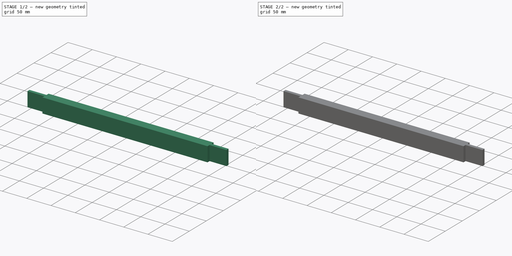
[diagram: build sequence overview — one tinted view per stage of 2, left to right]
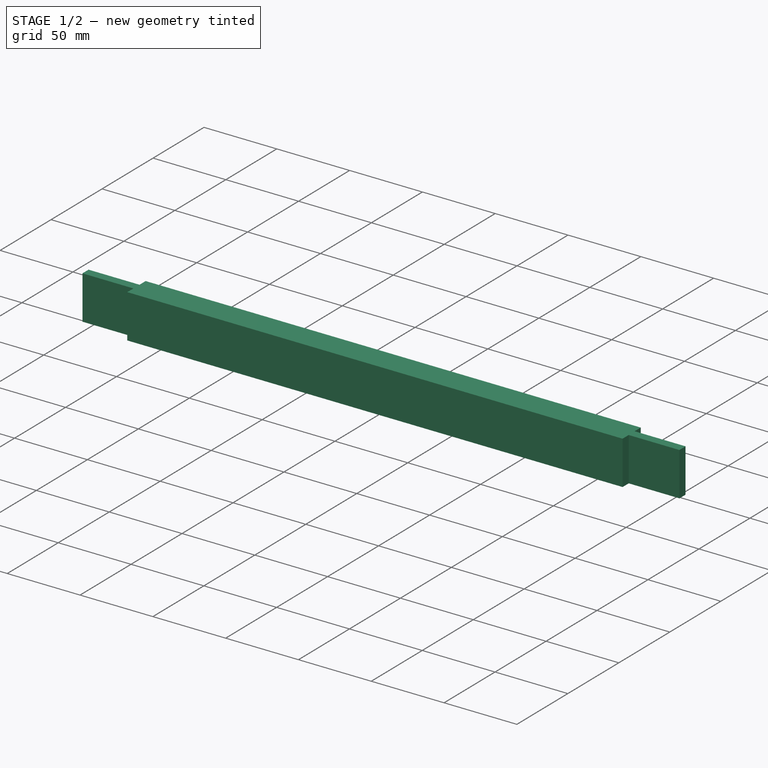
[diagram: stage 1 of 2 — iso view after this stage's code; geometry added in this stage tinted green]
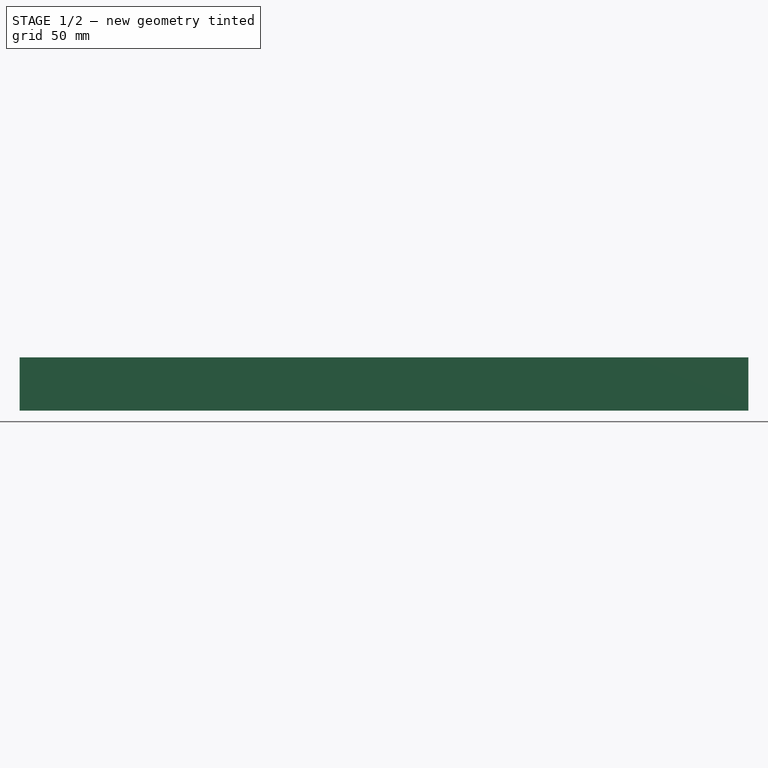
[diagram: stage 1 of 2 — front view after this stage's code; geometry added in this stage tinted green]
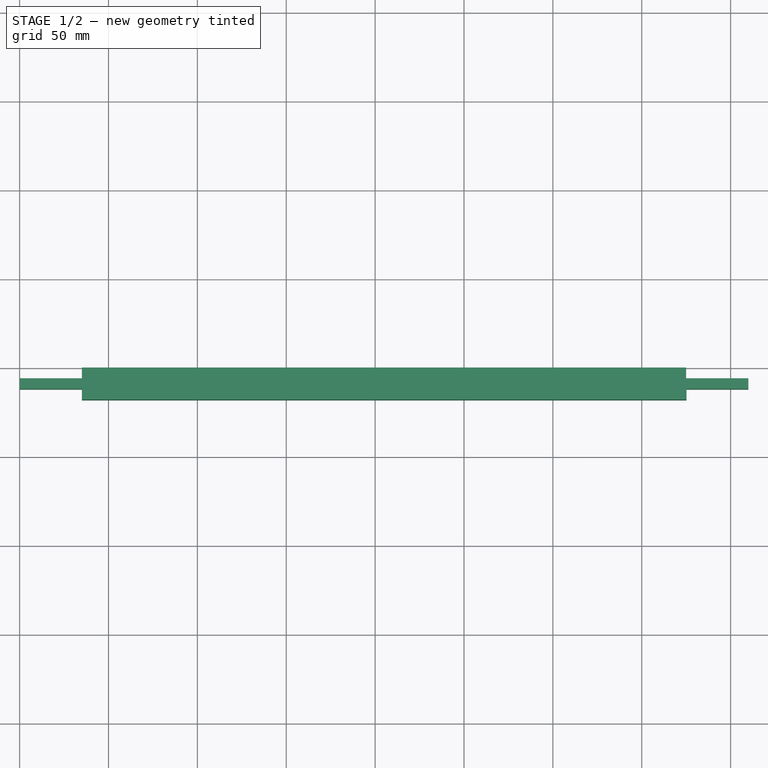
[diagram: stage 1 of 2 — top view after this stage's code; geometry added in this stage tinted green]
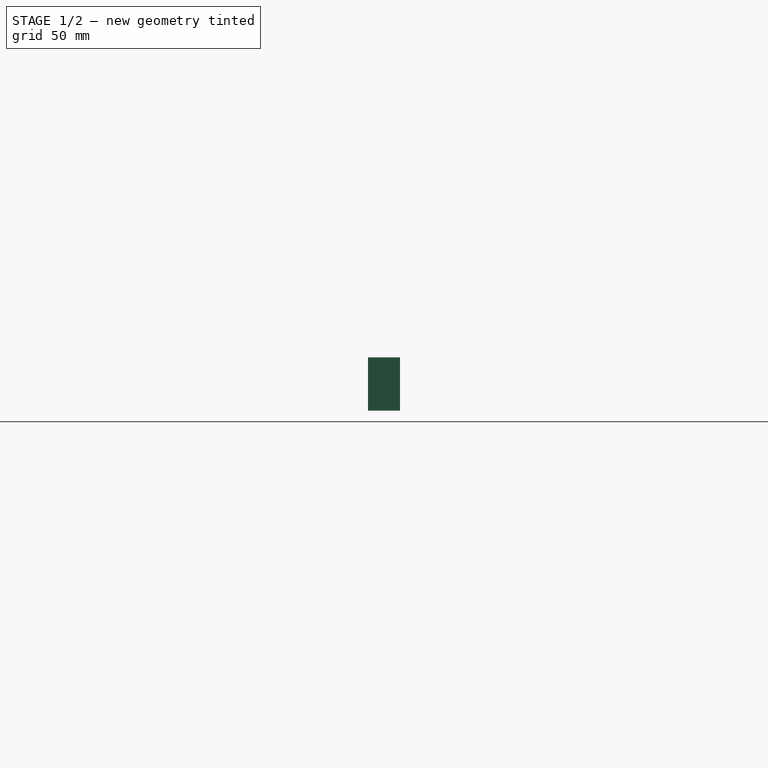
[diagram: stage 1 of 2 — right view after this stage's code; geometry added in this stage tinted green]
FCSTD DOCUMENT  (FreeCAD 0.14R$WCREV$)
Label: Door stile
License: CC-BY 3.0
LicenseURL: http://creativecommons.org/licenses/by/3.0/
objects: Sketcher::SketchObject×3, PartDesign::Pocket×2, PartDesign::Pad×1, Part::Feature×1
note: 10 computed .brp shape members not serialized (recipe doc carries the construction recipe); baked Part::Feature solids carry a one-line shape summary decoded from their .brp

FEATURE [Sketcher::SketchObject] Sketch
  Placement = pos=(0,0,0) rot=(1,0,0;1.5708rad)
  sketch-geometry (4):
    g0: LineSegment StartX=0 StartY=0 StartZ=0 EndX=410 EndY=0 EndZ=0
    g1: LineSegment StartX=410 StartY=0 StartZ=0 EndX=410 EndY=30 EndZ=0
    g2: LineSegment StartX=410 StartY=30 StartZ=0 EndX=0 EndY=30 EndZ=0
    g3: LineSegment StartX=0 StartY=30 StartZ=0 EndX=0 EndY=0 EndZ=0
  constraints (11):
    c: Coincident(g0,g1)
    c: Coincident(g1,g2)
    c: Coincident(g2,g3)
    c: Coincident(g3,g0)
    c: Horizontal(g0)
    c: Horizontal(g2)
    c: Vertical(g1)
    c: Vertical(g3)
    c: Coincident(g0,g-1)
    c: DistanceY(g3) = -30
    c: DistanceX(g2) = -410
FEATURE [PartDesign::Pad] Pad
  Length = 18
  Length2 = 100
  Placement = pos=(0,0,0) rot=(1,0,0;1.5708rad)
  Sketch = -> Sketch
  Type = 0
FEATURE [Sketcher::SketchObject] Sketch002
  Placement = pos=(0,0,30) rot=(0,0,1;3.14159rad)
  Support = -> Pad [Face3]
  sketch-geometry (19):
    g0: LineSegment StartX=0 StartY=0 StartZ=0 EndX=-35 EndY=0 EndZ=0
    g1: LineSegment StartX=-35 StartY=0 StartZ=0 EndX=-35 EndY=6 EndZ=0
    g2: LineSegment StartX=-35 StartY=6 StartZ=0 EndX=0 EndY=6 EndZ=0
    g3: LineSegment StartX=0 StartY=6 StartZ=0 EndX=0 EndY=0 EndZ=0
    g4: LineSegment [constr] StartX=0 StartY=6 StartZ=0 EndX=0 EndY=12 EndZ=0
    g5: LineSegment StartX=0 StartY=12 StartZ=0 EndX=-35 EndY=12 EndZ=0
    g6: LineSegment StartX=-35 StartY=12 StartZ=0 EndX=-35 EndY=18 EndZ=0
    g7: LineSegment StartX=-35 StartY=18 StartZ=0 EndX=0 EndY=18 EndZ=0
    g8: LineSegment StartX=0 StartY=18 StartZ=0 EndX=0 EndY=12 EndZ=0
    g9: LineSegment StartX=-410 StartY=0 StartZ=0 EndX=-375 EndY=0 EndZ=0
    g10: LineSegment StartX=-375 StartY=0 StartZ=0 EndX=-375 EndY=6 EndZ=0
    g11: LineSegment StartX=-375 StartY=6 StartZ=0 EndX=-410 EndY=6 EndZ=0
    g12: LineSegment StartX=-410 StartY=6 StartZ=0 EndX=-410 EndY=0 EndZ=0
    g13: LineSegment StartX=-375.161 StartY=18 StartZ=0 EndX=-375.161 EndY=12 EndZ=0
    g14: LineSegment StartX=-375.161 StartY=12 StartZ=0 EndX=-410 EndY=12 EndZ=0
    g15: LineSegment StartX=-410 StartY=12 StartZ=0 EndX=-410 EndY=18 EndZ=0
    g16: LineSegment [constr] StartX=-410 StartY=6 StartZ=0 EndX=-410 EndY=12 EndZ=0
    g17: LineSegment [constr] StartX=-375 StartY=0 StartZ=0 EndX=-35 EndY=0 EndZ=0
    g18: LineSegment StartX=-410 StartY=18 StartZ=0 EndX=-375.161 EndY=18 EndZ=0
  constraints (52):
    c: Coincident(g0,g1)
    c: Coincident(g1,g2)
    c: Coincident(g2,g3)
    c: Coincident(g3,g0)
    c: Horizontal(g0)
    c: Horizontal(g2)
    c: Vertical(g1)
    c: Vertical(g3)
    c: Coincident(g0,g-1)
    c: DistanceY(g3) = -6
    c: DistanceX(g2) = 35
    c: Vertical(g4)
    c: DistanceY(g4) = 6
    c: Coincident(g4,g2)
    c: Coincident(g5,g6)
    c: Coincident(g6,g7)
    c: Coincident(g7,g8)
    c: Coincident(g8,g5)
    c: Horizontal(g5)
    c: Horizontal(g7)
    c: Vertical(g6)
    c: Vertical(g8)
    c: Coincident(g5,g4)
    c: DistanceX(g7) = 35
    c: DistanceY(g8) = -6
    c: Coincident(g9,g10)
    c: Coincident(g10,g11)
    c: Coincident(g11,g12)
    c: Coincident(g12,g9)
    c: Horizontal(g9)
    c: Horizontal(g11)
    c: Vertical(g10)
    c: Vertical(g12)
    c: Coincident(g13,g14)
    c: Coincident(g14,g15)
    c: Horizontal(g14)
    c: Vertical(g13)
    c: Vertical(g15)
    c: DistanceY(g13) = -6
    c: DistanceY(g10) = 6
    c: Coincident(g16,g11)
    c: Coincident(g16,g14)
    c: Vertical(g16)
    c: DistanceY(g16) = 6
    c: Coincident(g17,g9)
    c: Coincident(g17,g0)
    c: Horizontal(g17)
    c: DistanceX(g9) = 35
    c: DistanceX(g17) = 340
    c: Coincident(g18,g15)
    c: Coincident(g18,g13)
    c: Horizontal(g18)
FEATURE [PartDesign::Pocket] Pocket
  Length = 18
  Placement = pos=(0,0,0) rot=(1,0,0;1.5708rad)
  Sketch = -> Sketch002
  Type = 1
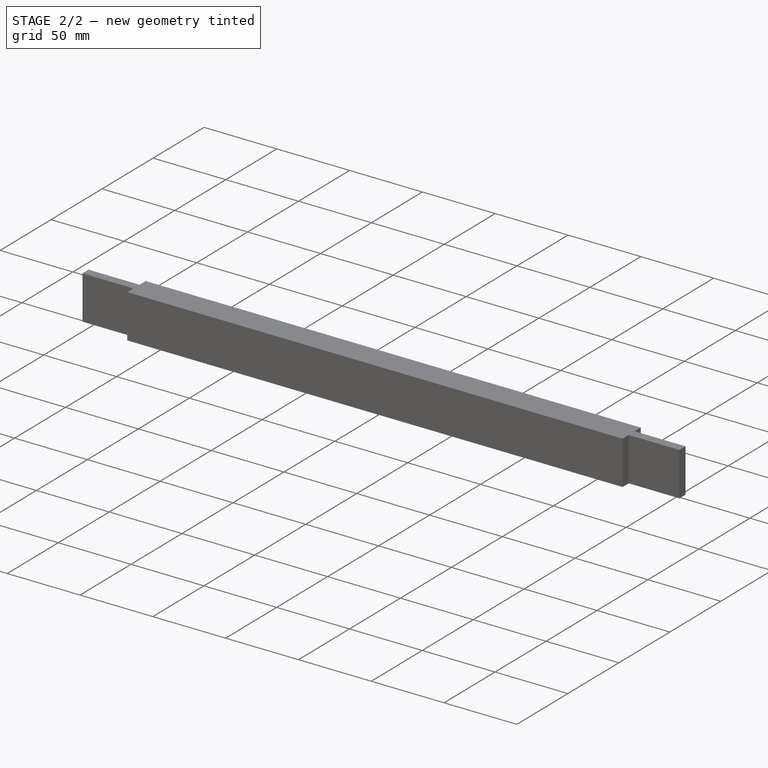
[diagram: stage 2 of 2 — iso view after this stage's code; geometry added in this stage tinted green]
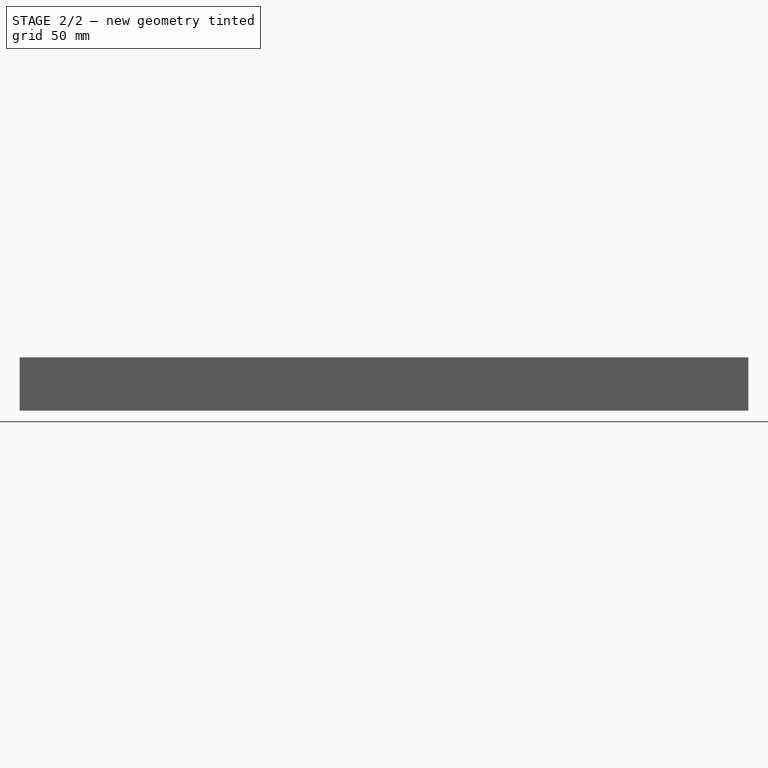
[diagram: stage 2 of 2 — front view after this stage's code; geometry added in this stage tinted green]
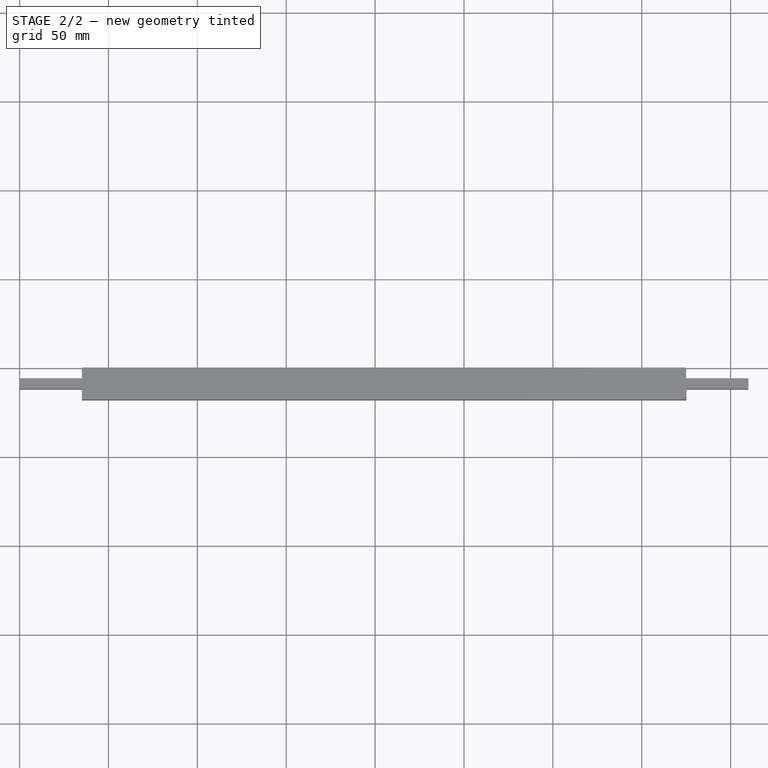
[diagram: stage 2 of 2 — top view after this stage's code; geometry added in this stage tinted green]
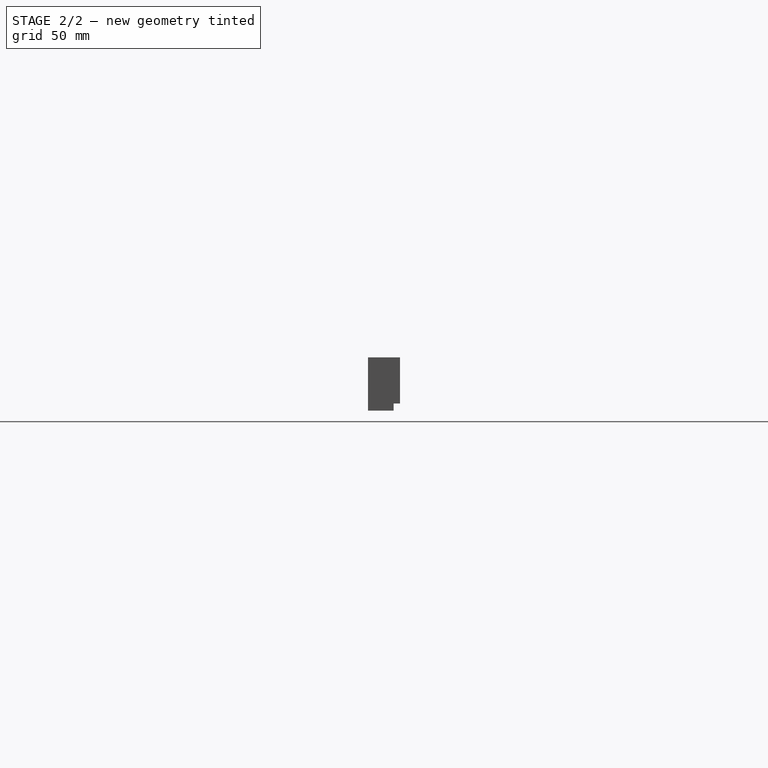
[diagram: stage 2 of 2 — right view after this stage's code; geometry added in this stage tinted green]
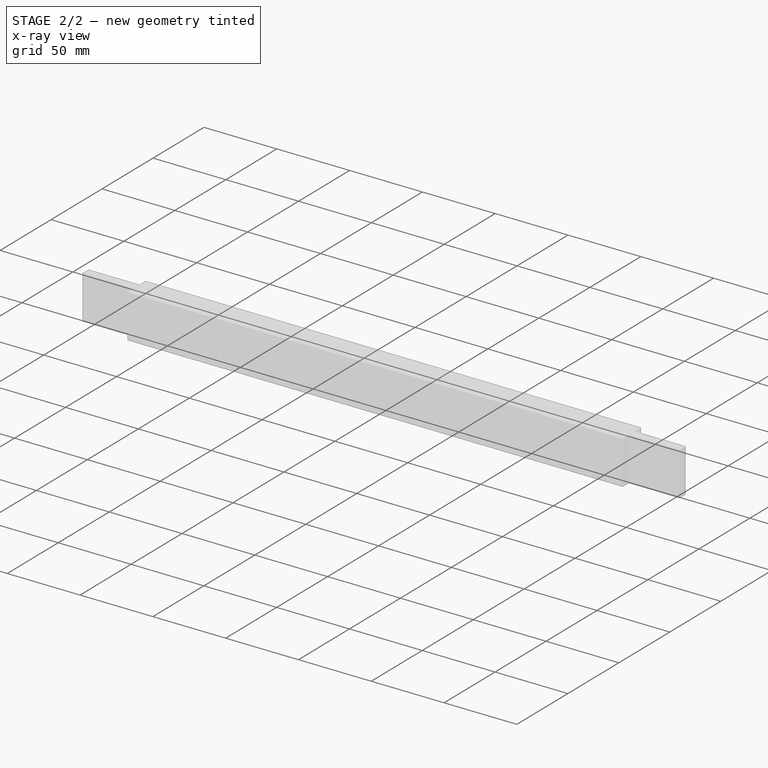
[diagram: stage 2 of 2 — x-ray composite at the iso view; earlier geometry ghosted, this stage's added geometry solid]
FEATURE [Sketcher::SketchObject] Sketch003
  Placement = pos=(0,0,0) rot=(1,0,0;3.14159rad)
  Support = -> Pocket [Face1]
  sketch-geometry (4):
    g0: LineSegment StartX=0 StartY=0 StartZ=0 EndX=413.932 EndY=0 EndZ=0
    g1: LineSegment StartX=413.932 StartY=0 StartZ=0 EndX=413.932 EndY=3.61124 EndZ=0
    g2: LineSegment StartX=413.932 StartY=3.61124 StartZ=0 EndX=0 EndY=3.61124 EndZ=0
    g3: LineSegment StartX=0 StartY=3.61124 StartZ=0 EndX=0 EndY=0 EndZ=0
  constraints (9):
    c: Coincident(g0,g1)
    c: Coincident(g1,g2)
    c: Coincident(g2,g3)
    c: Coincident(g3,g0)
    c: Horizontal(g0)
    c: Horizontal(g2)
    c: Vertical(g1)
    c: Vertical(g3)
    c: Coincident(g0,g-1)
FEATURE [PartDesign::Pocket] Pocket001
  Length = 4
  Placement = pos=(0,0,0) rot=(1,0,0;1.5708rad)
  Sketch = -> Sketch003
  Type = 0
FEATURE [Part::Feature] Pocket001001  label="Pocket002"
  Placement = pos=(0,0,0) rot=(1,0,0;1.5708rad)
  shape: bbox 410 x 18 x 30 mm, 16 faces (baked)
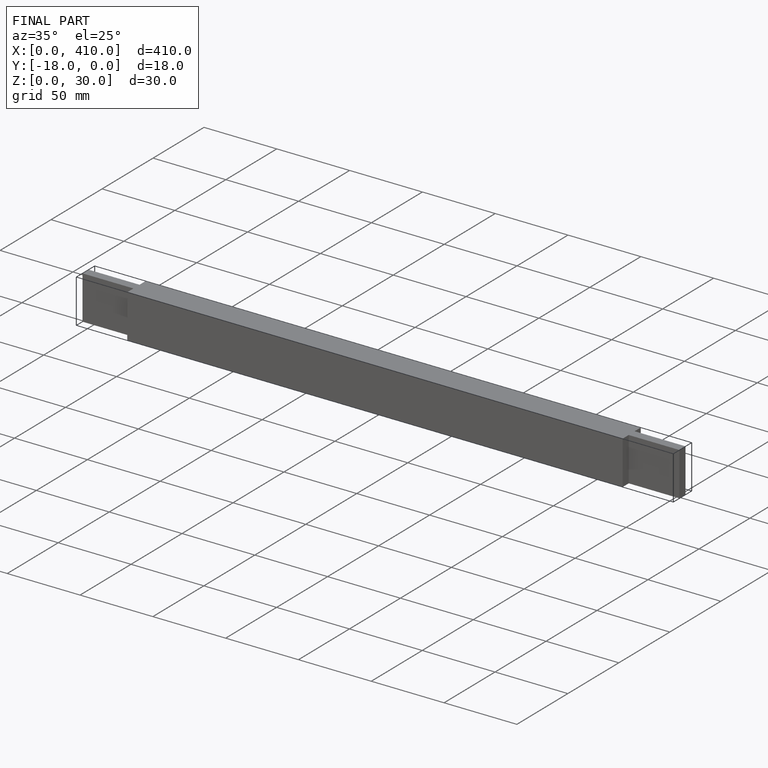
[diagram: finished part — iso view with bounding-box wireframe]
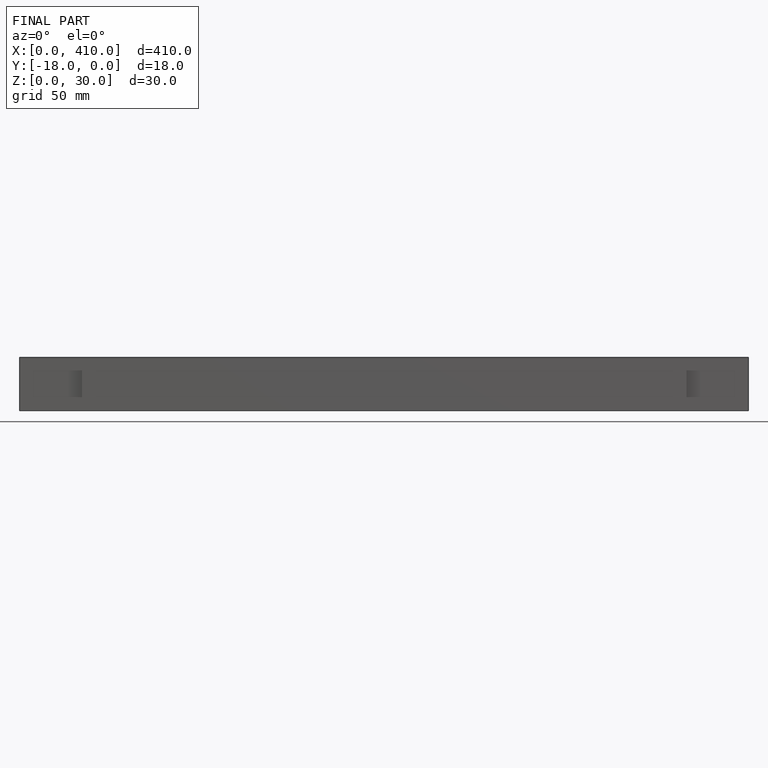
[diagram: finished part — front view with bounding-box wireframe]
